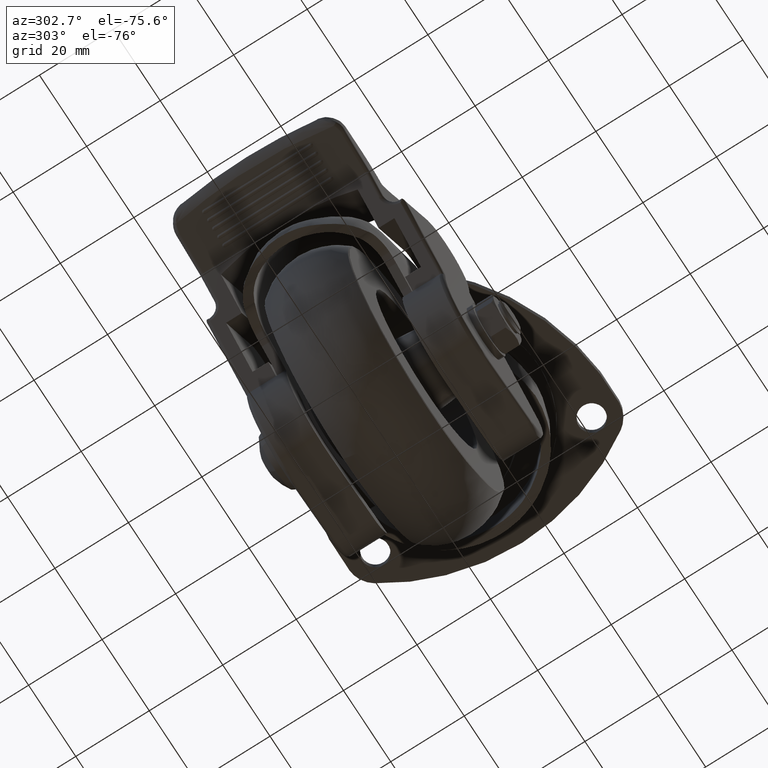
[diagram: clean part render]
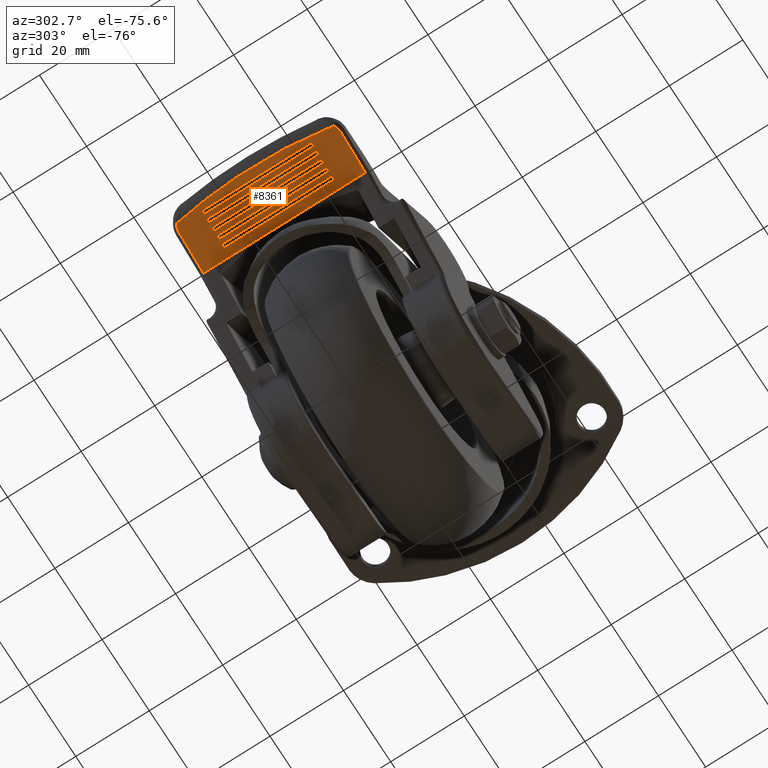
[diagram: same view with one face highlighted and labeled with its STEP entity id]
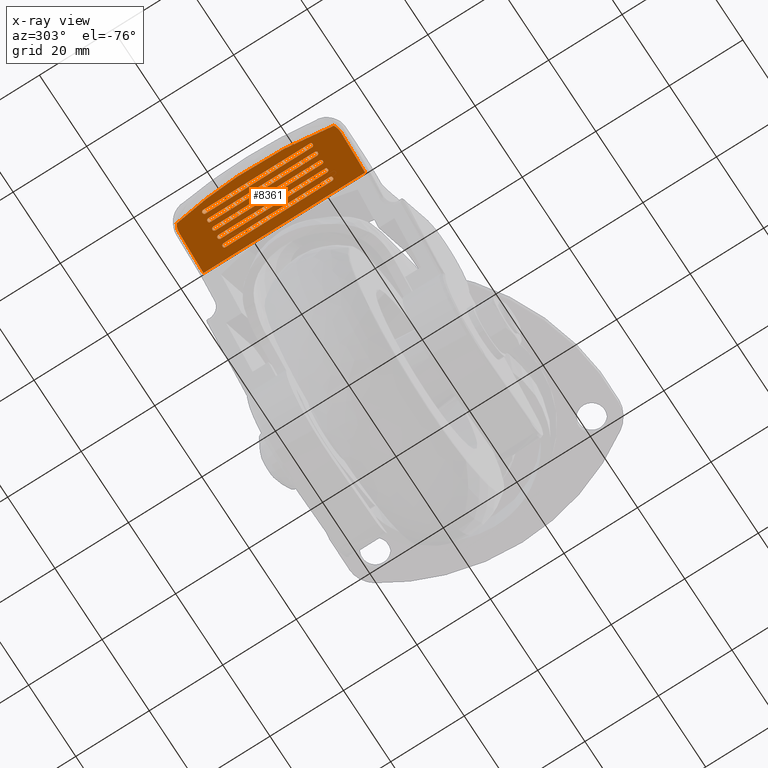
[diagram: x-ray of the same camera — body ghosted, the highlighted face saturated]
A machine part, auxiliary view. The second image highlights one B-rep face of the part: STEP entity #8361.
The next image is the same camera in x-ray: the body ghosted, the highlighted face saturated — about 0% of this face is hidden behind the body in this view.
In plain terms, the highlighted face is a freeform B-spline surface patch.
Its self-contained STEP definition (entity closure, byte-faithful):
#436=CARTESIAN_POINT('',(-70.619541118065797,14.524471999999999,-36.531005585843850));
#437=VERTEX_POINT('',#436);
#438=CARTESIAN_POINT('',(-69.668484042893496,14.524471999999960,-36.840022761809003));
#439=VERTEX_POINT('',#438);
#440=CARTESIAN_POINT('',(-70.619541118065811,14.524471999999999,-36.531005585843850));
#441=CARTESIAN_POINT('',(-70.619541118065811,14.813147307340323,-36.531005585843850));
#442=CARTESIAN_POINT('',(-70.381776845152046,14.957484961010479,-36.608259875865912));
#443=CARTESIAN_POINT('',(-70.144012572238282,15.101822614680636,-36.685514165887945));
#444=CARTESIAN_POINT('',(-69.906248299324531,14.957484961010460,-36.762768455909999));
#445=CARTESIAN_POINT('',(-69.668484026410795,14.813147307340300,-36.840022745932032));
#446=CARTESIAN_POINT('',(-69.668484042893496,14.524471999999960,-36.840022761809003));
#454=(BOUNDED_CURVE()B_SPLINE_CURVE(2,(#440,#441,#442,#443,#444,#445,#446),.UNSPECIFIED.,.F.,.U.)B_SPLINE_CURVE_WITH_KNOTS((3,2,2,3),(0.0,0.333333333333333,0.666666666666667,1.0),.UNSPECIFIED.)CURVE()GEOMETRIC_REPRESENTATION_ITEM()RATIONAL_B_SPLINE_CURVE((1.0,0.866025403784432,1.0,0.866025403784432,1.0,0.866025403784432,1.0))REPRESENTATION_ITEM(''));
#455=EDGE_CURVE('',#437,#439,#454,.T.);
#499=CARTESIAN_POINT('',(-72.759418118065796,14.524471999999999,-35.835717585843852));
#500=VERTEX_POINT('',#499);
#501=CARTESIAN_POINT('',(-71.808361042893495,14.524471999999960,-36.144734761809012));
#502=VERTEX_POINT('',#501);
#503=CARTESIAN_POINT('',(-72.759418118065810,14.524471999999999,-35.835717585843852));
#504=CARTESIAN_POINT('',(-72.759418118065810,14.813147307340323,-35.835717585843852));
#505=CARTESIAN_POINT('',(-72.521653845152045,14.957484961010479,-35.912971875865907));
#506=CARTESIAN_POINT('',(-72.283889572238294,15.101822614680636,-35.990226165887947));
#507=CARTESIAN_POINT('',(-72.046125299324530,14.957484961010460,-36.067480455910001));
#508=CARTESIAN_POINT('',(-71.808361026410793,14.813147307340300,-36.144734745932034));
#509=CARTESIAN_POINT('',(-71.808361042893495,14.524471999999960,-36.144734761809012));
#517=(BOUNDED_CURVE()B_SPLINE_CURVE(2,(#503,#504,#505,#506,#507,#508,#509),.UNSPECIFIED.,.F.,.U.)B_SPLINE_CURVE_WITH_KNOTS((3,2,2,3),(0.0,0.333333333333333,0.666666666666667,1.0),.UNSPECIFIED.)CURVE()GEOMETRIC_REPRESENTATION_ITEM()RATIONAL_B_SPLINE_CURVE((1.0,0.866025403784432,1.0,0.866025403784432,1.0,0.866025403784432,1.0))REPRESENTATION_ITEM(''));
#518=EDGE_CURVE('',#500,#502,#517,.T.);
#562=CARTESIAN_POINT('',(-74.899295118065794,14.524471999999999,-35.140429585843847));
#563=VERTEX_POINT('',#562);
#564=CARTESIAN_POINT('',(-73.948238042893493,14.524471999999960,-35.449446761809000));
#565=VERTEX_POINT('',#564);
#566=CARTESIAN_POINT('',(-74.899295118065808,14.524471999999999,-35.140429585843847));
#567=CARTESIAN_POINT('',(-74.899295118065808,14.813147307340321,-35.140429585843854));
#568=CARTESIAN_POINT('',(-74.661530845152043,14.957484961010470,-35.217683875865909));
#569=CARTESIAN_POINT('',(-74.423766572238279,15.101822614680623,-35.294938165887956));
#570=CARTESIAN_POINT('',(-74.186002299324528,14.957484961010451,-35.372192455910003));
#571=CARTESIAN_POINT('',(-73.948238026410792,14.813147307340298,-35.449446745932043));
#572=CARTESIAN_POINT('',(-73.948238042893493,14.524471999999960,-35.449446761809000));
#580=(BOUNDED_CURVE()B_SPLINE_CURVE(2,(#566,#567,#568,#569,#570,#571,#572),.UNSPECIFIED.,.F.,.U.)B_SPLINE_CURVE_WITH_KNOTS((3,2,2,3),(0.0,0.333333333333333,0.666666666666667,1.0),.UNSPECIFIED.)CURVE()GEOMETRIC_REPRESENTATION_ITEM()RATIONAL_B_SPLINE_CURVE((1.0,0.866025403784432,1.0,0.866025403784432,1.0,0.866025403784432,1.0))REPRESENTATION_ITEM(''));
#581=EDGE_CURVE('',#563,#565,#580,.T.);
#625=CARTESIAN_POINT('',(-77.039172118065792,14.524471999999999,-34.445141585843849));
#626=VERTEX_POINT('',#625);
#627=CARTESIAN_POINT('',(-76.088115042893492,14.524471999999960,-34.754158761809002));
#628=VERTEX_POINT('',#627);
#629=CARTESIAN_POINT('',(-77.039172118065707,14.524471999999999,-34.445141585843849));
#630=CARTESIAN_POINT('',(-77.039172118065707,14.813147307340321,-34.445141585843857));
#631=CARTESIAN_POINT('',(-76.801407845151957,14.957484961010470,-34.522395875865897));
#632=CARTESIAN_POINT('',(-76.563643572238178,15.101822614680623,-34.599650165887951));
#633=CARTESIAN_POINT('',(-76.325879299324427,14.957484961010451,-34.676904455909998));
#634=CARTESIAN_POINT('',(-76.088115026410676,14.813147307340298,-34.754158745932038));
#635=CARTESIAN_POINT('',(-76.088115042893492,14.524471999999960,-34.754158761809002));
#643=(BOUNDED_CURVE()B_SPLINE_CURVE(2,(#629,#630,#631,#632,#633,#634,#635),.UNSPECIFIED.,.F.,.U.)B_SPLINE_CURVE_WITH_KNOTS((3,2,2,3),(0.0,0.333333333333333,0.666666666666667,1.0),.UNSPECIFIED.)CURVE()GEOMETRIC_REPRESENTATION_ITEM()RATIONAL_B_SPLINE_CURVE((1.0,0.866025403784432,1.0,0.866025403784432,1.0,0.866025403784432,1.0))REPRESENTATION_ITEM(''));
#644=EDGE_CURVE('',#626,#628,#643,.T.);
#688=CARTESIAN_POINT('',(-70.619540922422701,-14.524471999999960,-36.531006687234552));
#689=VERTEX_POINT('',#688);
#690=CARTESIAN_POINT('',(-69.668484026410695,-14.524471999999999,-36.840022745932053));
#691=VERTEX_POINT('',#690);
#707=CARTESIAN_POINT('',(-69.668484026410695,-14.524471999999999,-36.840022745932053));
#708=CARTESIAN_POINT('',(-69.668484026410695,-15.024472299203987,-36.840022745932053));
#709=CARTESIAN_POINT('',(-70.144012474416698,-15.024472299203961,-36.685514716583313));
#710=CARTESIAN_POINT('',(-70.619540922422701,-15.024472299203945,-36.531006687234552));
#711=CARTESIAN_POINT('',(-70.619540922422701,-14.524471999999960,-36.531006687234552));
#719=(BOUNDED_CURVE()B_SPLINE_CURVE(2,(#707,#708,#709,#710,#711),.UNSPECIFIED.,.F.,.U.)B_SPLINE_CURVE_WITH_KNOTS((3,2,3),(0.0,0.500000000000000,1.0),.UNSPECIFIED.)CURVE()GEOMETRIC_REPRESENTATION_ITEM()RATIONAL_B_SPLINE_CURVE((1.0,0.707106781186548,1.0,0.707106781186548,1.0))REPRESENTATION_ITEM(''));
#720=EDGE_CURVE('',#691,#689,#719,.T.);
#749=CARTESIAN_POINT('',(-72.759417948257209,-14.524471999999960,-35.835718541797803));
#750=VERTEX_POINT('',#749);
#751=CARTESIAN_POINT('',(-71.808361026410694,-14.524471999999999,-36.144734745932048));
#752=VERTEX_POINT('',#751);
#768=CARTESIAN_POINT('',(-71.808361026410793,-14.524471999999999,-36.144734745932041));
#769=CARTESIAN_POINT('',(-71.808361026410793,-15.024472299203987,-36.144734745932041));
#770=CARTESIAN_POINT('',(-72.283889572238309,-15.024472299203980,-35.990226165887947));
#771=CARTESIAN_POINT('',(-72.759418118065810,-15.024472299203987,-35.835717585843845));
#772=CARTESIAN_POINT('',(-72.759417948257209,-14.524471999999960,-35.835718541797803));
#780=(BOUNDED_CURVE()B_SPLINE_CURVE(2,(#768,#769,#770,#771,#772),.UNSPECIFIED.,.F.,.U.)B_SPLINE_CURVE_WITH_KNOTS((3,2,3),(0.0,0.500000000000000,1.0),.UNSPECIFIED.)CURVE()GEOMETRIC_REPRESENTATION_ITEM()RATIONAL_B_SPLINE_CURVE((1.0,0.707106781186548,1.0,0.707106781186548,1.0))REPRESENTATION_ITEM(''));
#781=EDGE_CURVE('',#752,#750,#780,.T.);
#810=CARTESIAN_POINT('',(-74.899294974091589,-14.524471999999960,-35.140430396360998));
#811=VERTEX_POINT('',#810);
#812=CARTESIAN_POINT('',(-73.948238026410692,-14.524471999999999,-35.449446745932050));
#813=VERTEX_POINT('',#812);
#829=CARTESIAN_POINT('',(-73.948238026410792,-14.524471999999999,-35.449446745932043));
#830=CARTESIAN_POINT('',(-73.948238026410792,-15.024472299203975,-35.449446745932043));
#831=CARTESIAN_POINT('',(-74.423766572238307,-15.024472299203980,-35.294938165887949));
#832=CARTESIAN_POINT('',(-74.899295118065808,-15.024472299203975,-35.140429585843847));
#833=CARTESIAN_POINT('',(-74.899294974091589,-14.524471999999960,-35.140430396360998));
#841=(BOUNDED_CURVE()B_SPLINE_CURVE(2,(#829,#830,#831,#832,#833),.UNSPECIFIED.,.F.,.U.)B_SPLINE_CURVE_WITH_KNOTS((3,2,3),(0.0,0.500000000000000,1.0),.UNSPECIFIED.)CURVE()GEOMETRIC_REPRESENTATION_ITEM()RATIONAL_B_SPLINE_CURVE((1.0,0.707106781186548,1.0,0.707106781186548,1.0))REPRESENTATION_ITEM(''));
#842=EDGE_CURVE('',#813,#811,#841,.T.);
#871=CARTESIAN_POINT('',(-77.039171999925998,-14.524471999999960,-34.445142250924249));
#872=VERTEX_POINT('',#871);
#873=CARTESIAN_POINT('',(-76.088115026410691,-14.524471999999999,-34.754158745932052));
#874=VERTEX_POINT('',#873);
#890=CARTESIAN_POINT('',(-76.088115026410691,-14.524471999999999,-34.754158745932038));
#891=CARTESIAN_POINT('',(-76.088115026410705,-15.024472299203975,-34.754158745932045));
#892=CARTESIAN_POINT('',(-76.563643572238206,-15.024472299203980,-34.599650165887937));
#893=CARTESIAN_POINT('',(-77.039172118065721,-15.024472299203975,-34.445141585843857));
#894=CARTESIAN_POINT('',(-77.039171999925998,-14.524471999999960,-34.445142250924249));
#902=(BOUNDED_CURVE()B_SPLINE_CURVE(2,(#890,#891,#892,#893,#894),.UNSPECIFIED.,.F.,.U.)B_SPLINE_CURVE_WITH_KNOTS((3,2,3),(0.0,0.500000000000000,1.0),.UNSPECIFIED.)CURVE()GEOMETRIC_REPRESENTATION_ITEM()RATIONAL_B_SPLINE_CURVE((1.0,0.707106781186548,1.0,0.707106781186548,1.0))REPRESENTATION_ITEM(''));
#903=EDGE_CURVE('',#874,#872,#902,.T.);
#923=CARTESIAN_POINT('',(-69.668484026410695,-14.524471999999999,-36.840022745932053));
#924=CARTESIAN_POINT('',(-69.668484042893496,14.524471999999960,-36.840022761809003));
#925=QUASI_UNIFORM_CURVE('',1,(#923,#924),.UNSPECIFIED.,.F.,.U.);
#926=EDGE_CURVE('',#691,#439,#925,.T.);
#929=CARTESIAN_POINT('',(-70.619540922422701,-14.524471999999960,-36.531006687234552));
#930=CARTESIAN_POINT('',(-70.619541118065797,14.524471999999999,-36.531005585843850));
#931=QUASI_UNIFORM_CURVE('',1,(#929,#930),.UNSPECIFIED.,.F.,.U.);
#932=EDGE_CURVE('',#689,#437,#931,.T.);
#952=CARTESIAN_POINT('',(-71.808361026410694,-14.524471999999999,-36.144734745932048));
#953=CARTESIAN_POINT('',(-71.808361042893495,14.524471999999960,-36.144734761809012));
#954=QUASI_UNIFORM_CURVE('',1,(#952,#953),.UNSPECIFIED.,.F.,.U.);
#955=EDGE_CURVE('',#752,#502,#954,.T.);
#958=CARTESIAN_POINT('',(-72.759417948257209,-14.524471999999960,-35.835718541797803));
#959=CARTESIAN_POINT('',(-72.759418118065796,14.524471999999999,-35.835717585843852));
#960=QUASI_UNIFORM_CURVE('',1,(#958,#959),.UNSPECIFIED.,.F.,.U.);
#961=EDGE_CURVE('',#750,#500,#960,.T.);
#981=CARTESIAN_POINT('',(-73.948238026410692,-14.524471999999999,-35.449446745932050));
#982=CARTESIAN_POINT('',(-73.948238042893493,14.524471999999960,-35.449446761809000));
#983=QUASI_UNIFORM_CURVE('',1,(#981,#982),.UNSPECIFIED.,.F.,.U.);
#984=EDGE_CURVE('',#813,#565,#983,.T.);
#987=CARTESIAN_POINT('',(-74.899294974091589,-14.524471999999960,-35.140430396360998));
#988=CARTESIAN_POINT('',(-74.899295118065794,14.524471999999999,-35.140429585843847));
#989=QUASI_UNIFORM_CURVE('',1,(#987,#988),.UNSPECIFIED.,.F.,.U.);
#990=EDGE_CURVE('',#811,#563,#989,.T.);
#1010=CARTESIAN_POINT('',(-76.088115026410691,-14.524471999999999,-34.754158745932052));
#1011=CARTESIAN_POINT('',(-76.088115042893492,14.524471999999960,-34.754158761809002));
#1012=QUASI_UNIFORM_CURVE('',1,(#1010,#1011),.UNSPECIFIED.,.F.,.U.);
#1013=EDGE_CURVE('',#874,#628,#1012,.T.);
#1016=CARTESIAN_POINT('',(-77.039171999925998,-14.524471999999960,-34.445142250924249));
#1017=CARTESIAN_POINT('',(-77.039172118065792,14.524471999999999,-34.445141585843849));
#1018=QUASI_UNIFORM_CURVE('',1,(#1016,#1017),.UNSPECIFIED.,.F.,.U.);
#1019=EDGE_CURVE('',#872,#626,#1018,.T.);
#1048=CARTESIAN_POINT('',(-79.179049118065791,14.524471999999999,-33.749853585843859));
#1049=VERTEX_POINT('',#1048);
#1050=CARTESIAN_POINT('',(-78.227992042893490,14.524471999999960,-34.058870761808997));
#1051=VERTEX_POINT('',#1050);
#1052=CARTESIAN_POINT('',(-79.179049118065706,14.524471999999999,-33.749853585843859));
#1053=CARTESIAN_POINT('',(-79.179049118065691,14.813147307340321,-33.749853585843859));
#1054=CARTESIAN_POINT('',(-78.941284845151955,14.957484961010470,-33.827107875865913));
#1055=CARTESIAN_POINT('',(-78.703520572238176,15.101822614680623,-33.904362165887953));
#1056=CARTESIAN_POINT('',(-78.465756299324426,14.957484961010451,-33.981616455910000));
#1057=CARTESIAN_POINT('',(-78.227992026410689,14.813147307340298,-34.058870745932040));
#1058=CARTESIAN_POINT('',(-78.227992042893490,14.524471999999960,-34.058870761808997));
#1066=(BOUNDED_CURVE()B_SPLINE_CURVE(2,(#1052,#1053,#1054,#1055,#1056,#1057,#1058),.UNSPECIFIED.,.F.,.U.)B_SPLINE_CURVE_WITH_KNOTS((3,2,2,3),(0.0,0.333333333333333,0.666666666666667,1.0),.UNSPECIFIED.)CURVE()GEOMETRIC_REPRESENTATION_ITEM()RATIONAL_B_SPLINE_CURVE((1.0,0.866025403784432,1.0,0.866025403784432,1.0,0.866025403784432,1.0))REPRESENTATION_ITEM(''));
#1067=EDGE_CURVE('',#1049,#1051,#1066,.T.);
#1111=CARTESIAN_POINT('',(-79.179049019428007,-14.524471999999960,-33.749854107545048));
#1112=VERTEX_POINT('',#1111);
#1113=CARTESIAN_POINT('',(-78.227992026410689,-14.524471999999999,-34.058870745932047));
#1114=VERTEX_POINT('',#1113);
#1130=CARTESIAN_POINT('',(-78.227992026410689,-14.524471999999999,-34.058870745932040));
#1131=CARTESIAN_POINT('',(-78.227992026410689,-15.024472299203975,-34.058870745932033));
#1132=CARTESIAN_POINT('',(-78.703520572238205,-15.024472299203980,-33.904362165887953));
#1133=CARTESIAN_POINT('',(-79.179049118065706,-15.024472299203975,-33.749853585843859));
#1134=CARTESIAN_POINT('',(-79.179049019428007,-14.524471999999960,-33.749854107545048));
#1142=(BOUNDED_CURVE()B_SPLINE_CURVE(2,(#1130,#1131,#1132,#1133,#1134),.UNSPECIFIED.,.F.,.U.)B_SPLINE_CURVE_WITH_KNOTS((3,2,3),(0.0,0.500000000000000,1.0),.UNSPECIFIED.)CURVE()GEOMETRIC_REPRESENTATION_ITEM()RATIONAL_B_SPLINE_CURVE((1.0,0.707106781186548,1.0,0.707106781186548,1.0))REPRESENTATION_ITEM(''));
#1143=EDGE_CURVE('',#1114,#1112,#1142,.T.);
#1163=CARTESIAN_POINT('',(-78.227992026410689,-14.524471999999999,-34.058870745932047));
#1164=CARTESIAN_POINT('',(-78.227992042893490,14.524471999999960,-34.058870761808997));
#1165=QUASI_UNIFORM_CURVE('',1,(#1163,#1164),.UNSPECIFIED.,.F.,.U.);
#1166=EDGE_CURVE('',#1114,#1051,#1165,.T.);
#1169=CARTESIAN_POINT('',(-79.179049019428007,-14.524471999999960,-33.749854107545048));
#1170=CARTESIAN_POINT('',(-79.179049118065791,14.524471999999999,-33.749853585843859));
#1171=QUASI_UNIFORM_CURVE('',1,(#1169,#1170),.UNSPECIFIED.,.F.,.U.);
#1172=EDGE_CURVE('',#1112,#1049,#1171,.T.);
#2121=CARTESIAN_POINT('',(-67.387292000000102,22.0,-37.581227953096750));
#2122=VERTEX_POINT('',#2121);
#2166=CARTESIAN_POINT('',(-77.590021975169989,22.0,-34.266160256595903));
#2167=VERTEX_POINT('',#2166);
#2191=CARTESIAN_POINT('',(-77.590021975169989,22.0,-34.266160256595903));
#2192=CARTESIAN_POINT('',(-67.387292000000102,22.0,-37.581227953096750));
#2193=QUASI_UNIFORM_CURVE('',1,(#2191,#2192),.UNSPECIFIED.,.F.,.U.);
#2194=EDGE_CURVE('',#2167,#2122,#2193,.T.);
#2247=CARTESIAN_POINT('',(-79.715914923640895,21.388300336694151,-33.575415813016001));
#2248=VERTEX_POINT('',#2247);
#2278=CARTESIAN_POINT('',(-79.715914923640895,21.388300336694151,-33.575415813015987));
#2279=CARTESIAN_POINT('',(-78.740972993180236,22.0,-33.892193627140237));
#2280=CARTESIAN_POINT('',(-77.590021975169989,22.0,-34.266160256595903));
#2288=(BOUNDED_CURVE()B_SPLINE_CURVE(2,(#2278,#2279,#2280),.UNSPECIFIED.,.F.,.U.)CURVE()GEOMETRIC_REPRESENTATION_ITEM()QUASI_UNIFORM_CURVE()RATIONAL_B_SPLINE_CURVE((1.0,0.961008606666334,1.0))REPRESENTATION_ITEM(''));
#2289=EDGE_CURVE('',#2248,#2167,#2288,.T.);
#2551=CARTESIAN_POINT('',(-67.387292000000102,-22.0,-37.581227953096750));
#2552=VERTEX_POINT('',#2551);
#2598=CARTESIAN_POINT('',(-77.590021975169989,-22.0,-34.266160256595903));
#2599=VERTEX_POINT('',#2598);
#2615=CARTESIAN_POINT('',(-67.387292000000102,-22.0,-37.581227953096750));
#2616=CARTESIAN_POINT('',(-77.590021975169989,-22.0,-34.266160256595903));
#2617=QUASI_UNIFORM_CURVE('',1,(#2615,#2616),.UNSPECIFIED.,.F.,.U.);
#2618=EDGE_CURVE('',#2552,#2599,#2617,.T.);
#2679=CARTESIAN_POINT('',(-79.715914923640796,-21.388300336694300,-33.575415813016001));
#2680=VERTEX_POINT('',#2679);
#2694=CARTESIAN_POINT('',(-77.590021975169989,-22.0,-34.266160256595903));
#2695=CARTESIAN_POINT('',(-78.740972993180179,-22.000000000000004,-33.892193627140266));
#2696=CARTESIAN_POINT('',(-79.715914923640796,-21.388300336694211,-33.575415813016022));
#2704=(BOUNDED_CURVE()B_SPLINE_CURVE(2,(#2694,#2695,#2696),.UNSPECIFIED.,.F.,.U.)CURVE()GEOMETRIC_REPRESENTATION_ITEM()QUASI_UNIFORM_CURVE()RATIONAL_B_SPLINE_CURVE((1.0,0.961008606666336,1.0))REPRESENTATION_ITEM(''));
#2705=EDGE_CURVE('',#2599,#2680,#2704,.T.);
#2883=CARTESIAN_POINT('',(-79.715914923640824,-21.388300336694289,-33.575415813015987));
#2884=CARTESIAN_POINT('',(-83.227926164695845,-1.040834E-013,-32.434294265812106));
#2885=CARTESIAN_POINT('',(-79.715914923640852,21.388300336694108,-33.575415813015979));
#2893=(BOUNDED_CURVE()B_SPLINE_CURVE(2,(#2883,#2884,#2885),.UNSPECIFIED.,.F.,.U.)CURVE()GEOMETRIC_REPRESENTATION_ITEM()QUASI_UNIFORM_CURVE()RATIONAL_B_SPLINE_CURVE((1.0,0.986785409076751,1.0))REPRESENTATION_ITEM(''));
#2894=EDGE_CURVE('',#2680,#2248,#2893,.T.);
#7489=CARTESIAN_POINT('',(-67.387291999997586,3.330669E-013,-37.581227953096452));
#7490=VERTEX_POINT('',#7489);
#7666=CARTESIAN_POINT('',(-67.387291999997586,3.330669E-013,-37.581227953096452));
#7667=CARTESIAN_POINT('',(-67.387292000000102,-22.0,-37.581227953096750));
#7668=QUASI_UNIFORM_CURVE('',1,(#7666,#7667),.UNSPECIFIED.,.F.,.U.);
#7669=EDGE_CURVE('',#7490,#2552,#7668,.T.);
#8059=CARTESIAN_POINT('',(-67.387292000000102,22.0,-37.581227953096750));
#8060=CARTESIAN_POINT('',(-67.387291999997586,3.330669E-013,-37.581227953096452));
#8061=QUASI_UNIFORM_CURVE('',1,(#8059,#8060),.UNSPECIFIED.,.F.,.U.);
#8062=EDGE_CURVE('',#2122,#7490,#8061,.T.);
#8317=CARTESIAN_POINT('',(-82.163186414451189,-24.197799914719461,-32.780249158258222));
#8318=CARTESIAN_POINT('',(-66.684347769276300,-24.197799914719461,-37.809628363318843));
#8319=CARTESIAN_POINT('',(-82.163186414451189,24.197801094891432,-32.780249158258222));
#8320=CARTESIAN_POINT('',(-66.684347769276300,24.197801094891432,-37.809628363318843));
#8321=B_SPLINE_SURFACE_WITH_KNOTS('',1,1,((#8317,#8319),(#8318,#8320)),.UNSPECIFIED.,.F.,.F.,.U.,(2,2),(2,2),(0.0,16.275414003694522),(0.0,48.395601009610893),.UNSPECIFIED.);
#8322=ORIENTED_EDGE('',*,*,#7669,.T.);
#8323=ORIENTED_EDGE('',*,*,#2618,.T.);
#8324=ORIENTED_EDGE('',*,*,#2705,.T.);
#8325=ORIENTED_EDGE('',*,*,#2894,.T.);
#8326=ORIENTED_EDGE('',*,*,#2289,.T.);
#8327=ORIENTED_EDGE('',*,*,#2194,.T.);
#8328=ORIENTED_EDGE('',*,*,#8062,.T.);
#8329=EDGE_LOOP('',(#8322,#8323,#8324,#8325,#8326,#8327,#8328));
#8330=FACE_OUTER_BOUND('',#8329,.T.);
#8331=ORIENTED_EDGE('',*,*,#644,.F.);
#8332=ORIENTED_EDGE('',*,*,#1019,.F.);
#8333=ORIENTED_EDGE('',*,*,#903,.F.);
#8334=ORIENTED_EDGE('',*,*,#1013,.T.);
#8335=EDGE_LOOP('',(#8331,#8332,#8333,#8334));
#8336=FACE_BOUND('',#8335,.T.);
#8337=ORIENTED_EDGE('',*,*,#518,.F.);
#8338=ORIENTED_EDGE('',*,*,#961,.F.);
#8339=ORIENTED_EDGE('',*,*,#781,.F.);
#8340=ORIENTED_EDGE('',*,*,#955,.T.);
#8341=EDGE_LOOP('',(#8337,#8338,#8339,#8340));
#8342=FACE_BOUND('',#8341,.T.);
#8343=ORIENTED_EDGE('',*,*,#1067,.F.);
#8344=ORIENTED_EDGE('',*,*,#1172,.F.);
#8345=ORIENTED_EDGE('',*,*,#1143,.F.);
#8346=ORIENTED_EDGE('',*,*,#1166,.T.);
#8347=EDGE_LOOP('',(#8343,#8344,#8345,#8346));
#8348=FACE_BOUND('',#8347,.T.);
#8349=ORIENTED_EDGE('',*,*,#581,.F.);
#8350=ORIENTED_EDGE('',*,*,#990,.F.);
#8351=ORIENTED_EDGE('',*,*,#842,.F.);
#8352=ORIENTED_EDGE('',*,*,#984,.T.);
#8353=EDGE_LOOP('',(#8349,#8350,#8351,#8352));
#8354=FACE_BOUND('',#8353,.T.);
#8355=ORIENTED_EDGE('',*,*,#455,.F.);
#8356=ORIENTED_EDGE('',*,*,#932,.F.);
#8357=ORIENTED_EDGE('',*,*,#720,.F.);
#8358=ORIENTED_EDGE('',*,*,#926,.T.);
#8359=EDGE_LOOP('',(#8355,#8356,#8357,#8358));
#8360=FACE_BOUND('',#8359,.T.);
#8361=ADVANCED_FACE('',(#8330,#8336,#8342,#8348,#8354,#8360),#8321,.F.);